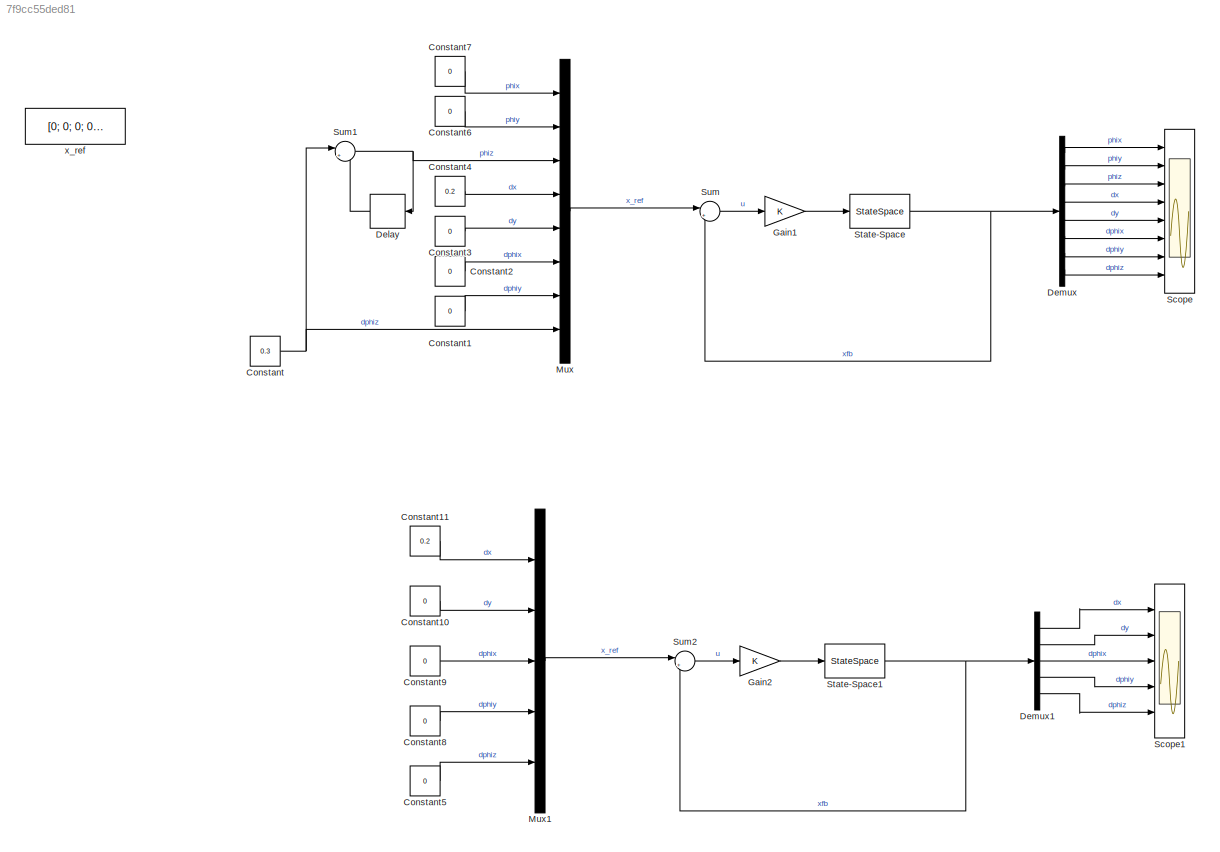
MODEL slx_7f9cc55ded81
KIND model
CONFIG AbsTol = auto
CONFIG EnableMultiTasking = off
CONFIG FixedStep = auto
CONFIG MaxStep = auto
CONFIG MinStep = auto
CONFIG RelTol = 1e-3
CONFIG SampleTimeConstraint = Unconstrained
CONFIG SolverName = VariableStepAuto
CONFIG StartTime = 0.0
CONFIG StopTime = 10
BLOCK [Constant] Constant
  Commented = on
  Value = 0.3
BLOCK [Constant] Constant1
  Commented = on
  Value = 0
BLOCK [Constant] Constant10
  Value = 0
BLOCK [Constant] Constant11
  Value = 0.2
BLOCK [Constant] Constant2
  Commented = on
  Value = 0
BLOCK [Constant] Constant3
  Commented = on
  Value = 0
BLOCK [Constant] Constant4
  Commented = on
  Value = 0.2
BLOCK [Constant] Constant5
  Value = 0
BLOCK [Constant] Constant6
  Commented = on
  Value = 0
BLOCK [Constant] Constant7
  Commented = on
  Value = 0
BLOCK [Constant] Constant8
  Value = 0
BLOCK [Constant] Constant9
  Value = 0
BLOCK [Delay] Delay
  Commented = on
  DelayLength = 1
  InputPortMap = u0
  NameLocation = top
  Ports = [1, 1]
  SampleTime = 1
BLOCK [Demux] Demux
  Commented = on
  Outputs = 8
  Ports = [1, 8]
BLOCK [Demux] Demux1
  Outputs = 5
  Ports = [1, 5]
BLOCK [Gain] Gain1
  Commented = on
  Gain = K
  Multiplication = Matrix(K*u)
BLOCK [Gain] Gain2
  Gain = K
  Multiplication = Matrix(K*u)
BLOCK [Mux] Mux
  Commented = on
  DisplayOption = bar
  Inputs = 8
  Ports = [8, 1]
BLOCK [Mux] Mux1
  DisplayOption = bar
  Inputs = 5
  Ports = [5, 1]
BLOCK [Scope] Scope
  Commented = on
  Floating = off
  NumInputPorts = 8
  Ports = [8]
  ScopeSpecificationString = Simulink.scopes.TimeScopeBlockCfg('CurrentConfiguration', extmgr.ConfigurationSet(extmgr.Configuration('Core','General UI',true),extmgr.Configuration('Core','Source UI',true),extmgr.Configuration('Sources','WiredSimulink',true),extmgr.Configuration('Visuals','Time Domain',true,'SerializedDisplays',{struct('MinYLimReal','-1.10133','MaxYLimReal','3.59601','YLabelReal','','MinYLimMag','0.00000','MaxY...<+1910ch>
BLOCK [Scope] Scope1
  Floating = off
  NumInputPorts = 5
  Ports = [5]
  ScopeSpecificationString = Simulink.scopes.TimeScopeBlockCfg('CurrentConfiguration', extmgr.ConfigurationSet(extmgr.Configuration('Core','General UI',true),extmgr.Configuration('Core','Source UI',true),extmgr.Configuration('Sources','WiredSimulink',true,'DataLoggingVariableName','ScopeData1'),extmgr.Configuration('Visuals','Time Domain',true),extmgr.Configuration('Tools','Plot Navigation',true),extmgr.Configuration('Tools',...<+40ch>
BLOCK [StateSpace] State-Space
  A = double(A_sys)
  AllowTunableDMatrix = on
  B = double(B_sys)
  C = C_sys
  Commented = on
  ContinuousStateAttributes = {'phix', 'phiy', 'phiz', 'dx', 'dy', 'dphix', 'dphiy', 'dphiz'}
  D = D_sys
  InitialCondition = 0
  Ports = [1, 1]
BLOCK [StateSpace] State-Space1
  A = double(A_sys)
  AllowTunableDMatrix = on
  B = double(B_sys)
  C = C_sys
  ContinuousStateAttributes = {'phix', 'phiy', 'phiz', 'dx', 'dy', 'dphix', 'dphiy', 'dphiz'}
  D = D_sys
  InitialCondition = 0
  Ports = [1, 1]
BLOCK [Sum] Sum
  Commented = on
  Inputs = |+-
  Ports = [2, 1]
BLOCK [Sum] Sum1
  Commented = on
  Inputs = |++
  Ports = [2, 1]
BLOCK [Sum] Sum2
  Inputs = |+-
  Ports = [2, 1]
BLOCK [Constant] x_ref
  Commented = on
  Value = [0; 0; 0; 0; 0; 0; 0; 0.3]
  VectorParams1D = off
LINE Constant10:1 -> Mux1:2
LINE Constant11:1 -> Mux1:1
LINE Constant1:1 -> Mux:7
LINE Constant2:1 -> Mux:6
LINE Constant3:1 -> Mux:5
LINE Constant4:1 -> Mux:4
LINE Constant5:1 -> Mux1:5
LINE Constant6:1 -> Mux:2
LINE Constant7:1 -> Mux:1
LINE Constant8:1 -> Mux1:4
LINE Constant9:1 -> Mux1:3
NET Constant:1 -> Mux:8, Sum1:1
LINE Delay:1 -> Sum1:2
LINE Demux1:1 -> Scope1:1
LINE Demux1:2 -> Scope1:2
LINE Demux1:3 -> Scope1:3
LINE Demux1:4 -> Scope1:4
LINE Demux1:5 -> Scope1:5
LINE Demux:1 -> Scope:1
LINE Demux:2 -> Scope:2
LINE Demux:3 -> Scope:3
LINE Demux:4 -> Scope:4
LINE Demux:5 -> Scope:5
LINE Demux:6 -> Scope:6
LINE Demux:7 -> Scope:7
LINE Demux:8 -> Scope:8
LINE Gain1:1 -> State-Space:1
LINE Gain2:1 -> State-Space1:1
LINE Mux1:1 -> Sum2:1
LINE Mux:1 -> Sum:1
NET State-Space1:1 -> Demux1:1, Sum2:2
NET State-Space:1 -> Demux:1, Sum:2
NET Sum1:1 -> Delay:1, Mux:3
LINE Sum2:1 -> Gain2:1
LINE Sum:1 -> Gain1:1
note: NET lines group one-source signal fan-out (src -> all destinations, sorted); 1:1 wires keep LINE
